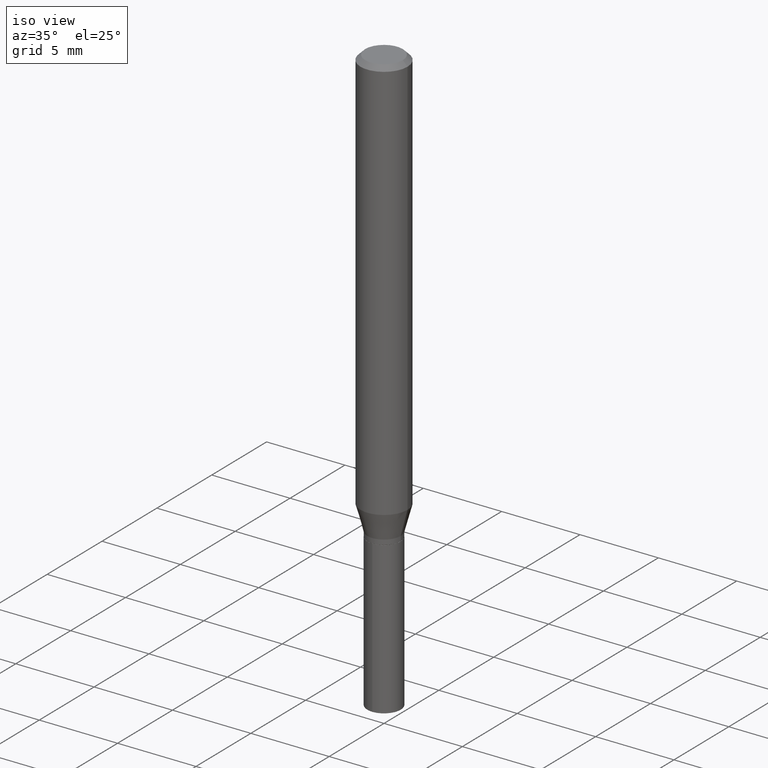
[diagram: clean part render]
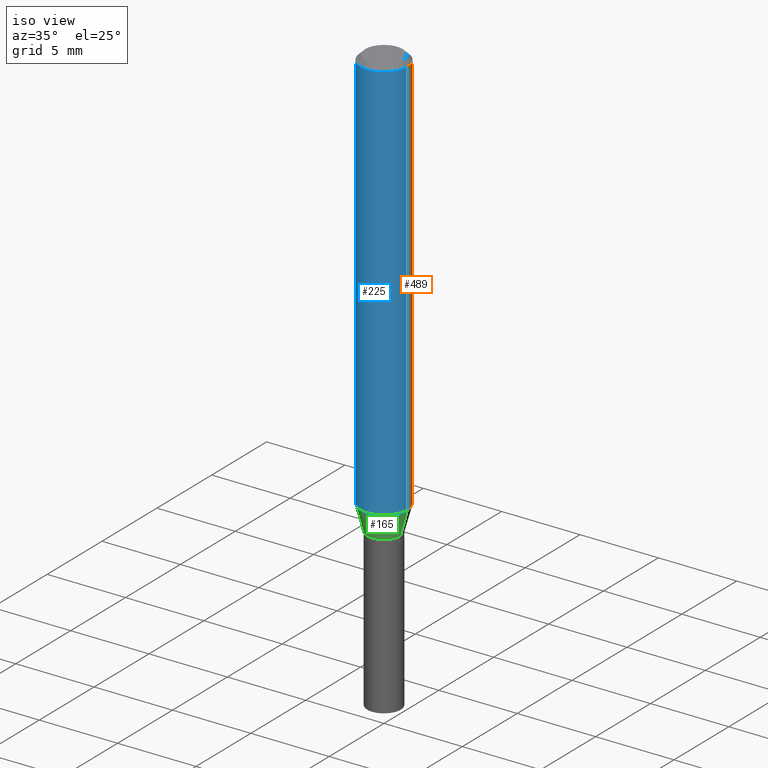
[diagram: same view with three faces highlighted in distinct colors, each labeled with its STEP entity id]
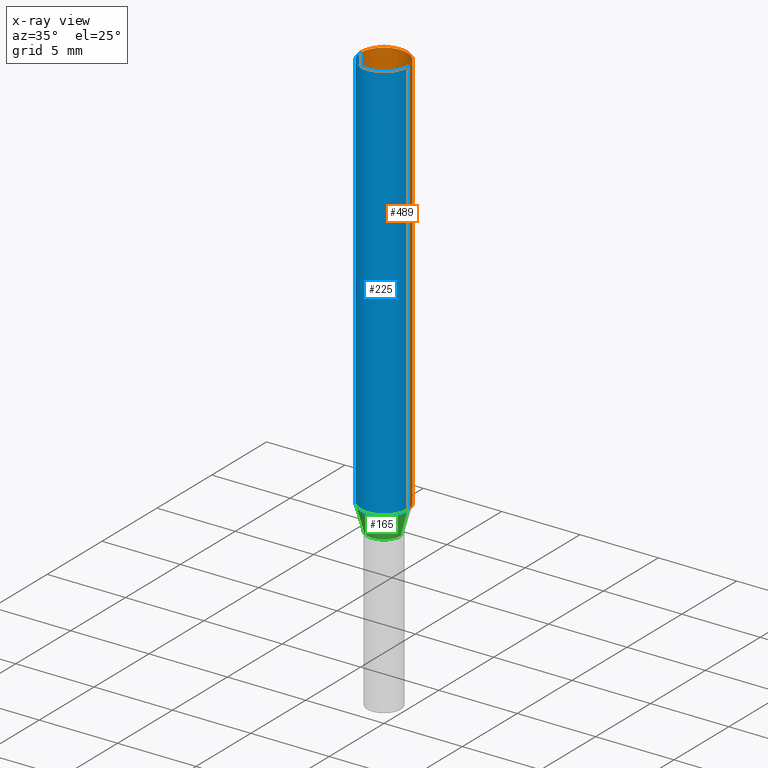
[diagram: x-ray of the same camera — body ghosted, the three highlighted faces saturated]
A machine part, iso view with three faces highlighted in distinct colors.
The next image is the same camera in x-ray (body ghosted, the three faces saturated) — at least one of them is partly hidden behind the body in this view.
Their STEP definitions:

[orange] entity #489 — the highlighted cylindrical surface (edge-blend (fillet) strip) has radius 1.4999 mm, axis along (-0, 0, 1).
#5 = AXIS2_PLACEMENT_3D ( 'NONE', #260, #487, #415 ) ;
#29 = CARTESIAN_POINT ( 'NONE',  ( 0.05905000000000013016, -3.966958010282648505E-15, -1.018081931190571998 ) ) ;
#33 = DIRECTION ( 'NONE',  ( -2.445468806185136597E-29, 3.491481338843145583E-15, 1.000000000000000000 ) ) ;
#36 = CARTESIAN_POINT ( 'NONE',  ( 2.489687604867266189E-29, -3.554614064165273585E-15, -1.018081931190571998 ) ) ;
#39 = VECTOR ( 'NONE', #484, 39.37007874015748143 ) ;
#41 = ORIENTED_EDGE ( 'NONE', *, *, #393, .T. ) ;
#73 = CARTESIAN_POINT ( 'NONE',  ( -0.05905000000000006771, 4.195754854663396409E-16, -2.904631170795525045E-30 ) ) ;
#138 = LINE ( 'NONE', #73, #39 ) ;
#152 = VERTEX_POINT ( 'NONE', #247 ) ;
#157 = ORIENTED_EDGE ( 'NONE', *, *, #408, .F. ) ;
#169 = VERTEX_POINT ( 'NONE', #29 ) ;
#191 = FACE_OUTER_BOUND ( 'NONE', #399, .T. ) ;
#196 = CARTESIAN_POINT ( 'NONE',  ( 0.000000000000000000, 0.000000000000000000, 0.000000000000000000 ) ) ;
#206 = VERTEX_POINT ( 'NONE', #481 ) ;
#228 = CYLINDRICAL_SURFACE ( 'NONE', #236, 0.05905000000000006771 ) ;
#236 = AXIS2_PLACEMENT_3D ( 'NONE', #196, #424, #341 ) ;
#247 = CARTESIAN_POINT ( 'NONE',  ( 0.05905000000000000526, -4.535783407291119586E-16, -0.01181000000000007565 ) ) ;
#260 = CARTESIAN_POINT ( 'NONE',  ( 2.888098660104664642E-31, -4.123439461173780879E-17, -0.01181000000000007565 ) ) ;
#267 = VECTOR ( 'NONE', #299, 39.37007874015748143 ) ;
#295 = CARTESIAN_POINT ( 'NONE',  ( 0.05905000000000006771, -4.123439461173745257E-16, 2.879382386107503723E-30 ) ) ;
#299 = DIRECTION ( 'NONE',  ( -2.445468806185136877E-29, 3.491481338843145188E-15, 1.000000000000000000 ) ) ;
#332 = CIRCLE ( 'NONE', #372, 0.05905000000000013016 ) ;
#333 = DIRECTION ( 'NONE',  ( 1.000000000000000000, -6.982962677686265133E-15, 0.000000000000000000 ) ) ;
#341 = DIRECTION ( 'NONE',  ( 1.000000000000000000, -6.982962677686266711E-15, 4.876176775795936353E-29 ) ) ;
#351 = EDGE_CURVE ( 'NONE', #206, #420, #138, .T. ) ;
#359 = ORIENTED_EDGE ( 'NONE', *, *, #416, .F. ) ;
#372 = AXIS2_PLACEMENT_3D ( 'NONE', #36, #33, #333 ) ;
#393 = EDGE_CURVE ( 'NONE', #169, #206, #332, .T. ) ;
#394 = CIRCLE ( 'NONE', #5, 0.05905000000000000526 ) ;
#399 = EDGE_LOOP ( 'NONE', ( #41, #440, #359, #157 ) ) ;
#408 = EDGE_CURVE ( 'NONE', #169, #152, #414, .T. ) ;
#414 = LINE ( 'NONE', #295, #267 ) ;
#415 = DIRECTION ( 'NONE',  ( 1.000000000000000000, -6.982962677686268288E-15, 0.000000000000000000 ) ) ;
#416 = EDGE_CURVE ( 'NONE', #152, #420, #394, .T. ) ;
#420 = VERTEX_POINT ( 'NONE', #447 ) ;
#424 = DIRECTION ( 'NONE',  ( -2.445468806185136597E-29, 3.491481338843145583E-15, 1.000000000000000000 ) ) ;
#440 = ORIENTED_EDGE ( 'NONE', *, *, #351, .T. ) ;
#447 = CARTESIAN_POINT ( 'NONE',  ( -0.05905000000000000526, -1.378348743922165375E-15, -0.01181000000000007565 ) ) ;
#481 = CARTESIAN_POINT ( 'NONE',  ( -0.05905000000000013016, -3.135038578698933303E-15, -1.018081931190571998 ) ) ;
#484 = DIRECTION ( 'NONE',  ( -2.445468806185136877E-29, 3.491481338843145188E-15, 1.000000000000000000 ) ) ;
#487 = DIRECTION ( 'NONE',  ( -2.445468806185136597E-29, 3.491481338843145583E-15, 1.000000000000000000 ) ) ;
#489 = ADVANCED_FACE ( 'NONE', ( #191 ), #228, .T. ) ;

[blue] entity #225 — the highlighted cylindrical surface (edge-blend (fillet) strip) has radius 1.4999 mm, axis along (-0, 0, 1).
#29 = CARTESIAN_POINT ( 'NONE',  ( 0.05905000000000013016, -3.966958010282648505E-15, -1.018081931190571998 ) ) ;
#39 = VECTOR ( 'NONE', #484, 39.37007874015748143 ) ;
#69 = DIRECTION ( 'NONE',  ( -2.445468806185136597E-29, 3.491481338843145583E-15, 1.000000000000000000 ) ) ;
#73 = CARTESIAN_POINT ( 'NONE',  ( -0.05905000000000006771, 4.195754854663396409E-16, -2.904631170795525045E-30 ) ) ;
#96 = FACE_OUTER_BOUND ( 'NONE', #279, .T. ) ;
#98 = DIRECTION ( 'NONE',  ( 1.000000000000000000, -6.982962677686265133E-15, 0.000000000000000000 ) ) ;
#138 = LINE ( 'NONE', #73, #39 ) ;
#152 = VERTEX_POINT ( 'NONE', #247 ) ;
#169 = VERTEX_POINT ( 'NONE', #29 ) ;
#206 = VERTEX_POINT ( 'NONE', #481 ) ;
#212 = CIRCLE ( 'NONE', #278, 0.05905000000000013016 ) ;
#222 = CARTESIAN_POINT ( 'NONE',  ( 2.888098660104664642E-31, -4.123439461173780879E-17, -0.01181000000000007565 ) ) ;
#225 = ADVANCED_FACE ( 'NONE', ( #96 ), #251, .T. ) ;
#240 = ORIENTED_EDGE ( 'NONE', *, *, #351, .F. ) ;
#247 = CARTESIAN_POINT ( 'NONE',  ( 0.05905000000000000526, -4.535783407291119586E-16, -0.01181000000000007565 ) ) ;
#251 = CYLINDRICAL_SURFACE ( 'NONE', #298, 0.05905000000000006771 ) ;
#258 = EDGE_CURVE ( 'NONE', #206, #169, #212, .T. ) ;
#262 = AXIS2_PLACEMENT_3D ( 'NONE', #222, #375, #300 ) ;
#267 = VECTOR ( 'NONE', #299, 39.37007874015748143 ) ;
#278 = AXIS2_PLACEMENT_3D ( 'NONE', #364, #437, #98 ) ;
#279 = EDGE_LOOP ( 'NONE', ( #240, #288, #325, #460 ) ) ;
#284 = DIRECTION ( 'NONE',  ( 1.000000000000000000, -6.982962677686266711E-15, 4.876176775795936353E-29 ) ) ;
#288 = ORIENTED_EDGE ( 'NONE', *, *, #258, .T. ) ;
#295 = CARTESIAN_POINT ( 'NONE',  ( 0.05905000000000006771, -4.123439461173745257E-16, 2.879382386107503723E-30 ) ) ;
#298 = AXIS2_PLACEMENT_3D ( 'NONE', #326, #69, #284 ) ;
#299 = DIRECTION ( 'NONE',  ( -2.445468806185136877E-29, 3.491481338843145188E-15, 1.000000000000000000 ) ) ;
#300 = DIRECTION ( 'NONE',  ( 1.000000000000000000, -6.982962677686268288E-15, 0.000000000000000000 ) ) ;
#325 = ORIENTED_EDGE ( 'NONE', *, *, #408, .T. ) ;
#326 = CARTESIAN_POINT ( 'NONE',  ( 0.000000000000000000, 0.000000000000000000, 0.000000000000000000 ) ) ;
#351 = EDGE_CURVE ( 'NONE', #206, #420, #138, .T. ) ;
#364 = CARTESIAN_POINT ( 'NONE',  ( 2.489687604867266189E-29, -3.554614064165273585E-15, -1.018081931190571998 ) ) ;
#375 = DIRECTION ( 'NONE',  ( -2.445468806185136597E-29, 3.491481338843145583E-15, 1.000000000000000000 ) ) ;
#408 = EDGE_CURVE ( 'NONE', #169, #152, #414, .T. ) ;
#414 = LINE ( 'NONE', #295, #267 ) ;
#420 = VERTEX_POINT ( 'NONE', #447 ) ;
#437 = DIRECTION ( 'NONE',  ( -2.445468806185136597E-29, 3.491481338843145583E-15, 1.000000000000000000 ) ) ;
#447 = CARTESIAN_POINT ( 'NONE',  ( -0.05905000000000000526, -1.378348743922165375E-15, -0.01181000000000007565 ) ) ;
#455 = EDGE_CURVE ( 'NONE', #420, #152, #473, .T. ) ;
#460 = ORIENTED_EDGE ( 'NONE', *, *, #455, .F. ) ;
#473 = CIRCLE ( 'NONE', #262, 0.05905000000000000526 ) ;
#481 = CARTESIAN_POINT ( 'NONE',  ( -0.05905000000000013016, -3.135038578698933303E-15, -1.018081931190571998 ) ) ;
#484 = DIRECTION ( 'NONE',  ( -2.445468806185136877E-29, 3.491481338843145188E-15, 1.000000000000000000 ) ) ;

[green] entity #165 — the highlighted conical surface has half-angle 15 deg.
#1 = VERTEX_POINT ( 'NONE', #172 ) ;
#14 = EDGE_CURVE ( 'NONE', #305, #169, #474, .T. ) ;
#19 = ORIENTED_EDGE ( 'NONE', *, *, #301, .T. ) ;
#22 = FACE_OUTER_BOUND ( 'NONE', #121, .T. ) ;
#29 = CARTESIAN_POINT ( 'NONE',  ( 0.05905000000000013016, -3.966958010282648505E-15, -1.018081931190571998 ) ) ;
#59 = LINE ( 'NONE', #216, #442 ) ;
#70 = CARTESIAN_POINT ( 'NONE',  ( 0.04195000000000000118, -4.070368944823337860E-15, -1.081900000000000084 ) ) ;
#94 = CIRCLE ( 'NONE', #432, 0.04195000000000000118 ) ;
#98 = DIRECTION ( 'NONE',  ( 1.000000000000000000, -6.982962677686265133E-15, 0.000000000000000000 ) ) ;
#118 = ORIENTED_EDGE ( 'NONE', *, *, #126, .F. ) ;
#121 = EDGE_LOOP ( 'NONE', ( #118, #19, #282, #392 ) ) ;
#122 = VECTOR ( 'NONE', #363, 39.37007874015747433 ) ;
#126 = EDGE_CURVE ( 'NONE', #1, #206, #59, .T. ) ;
#165 = ADVANCED_FACE ( 'NONE', ( #22 ), #383, .T. ) ;
#169 = VERTEX_POINT ( 'NONE', #29 ) ;
#172 = CARTESIAN_POINT ( 'NONE',  ( -0.04195000000000000118, -3.500484444943037956E-15, -1.081900000000000084 ) ) ;
#204 = DIRECTION ( 'NONE',  ( -0.2588190451025213501, 5.211531920934551042E-15, 0.9659258262890682012 ) ) ;
#206 = VERTEX_POINT ( 'NONE', #481 ) ;
#209 = CARTESIAN_POINT ( 'NONE',  ( 0.04195000000000000118, -4.070368944823337860E-15, -1.081900000000000084 ) ) ;
#212 = CIRCLE ( 'NONE', #278, 0.05905000000000013016 ) ;
#216 = CARTESIAN_POINT ( 'NONE',  ( -0.04195000000000000118, -3.479360982843036974E-15, -1.081900000000000084 ) ) ;
#258 = EDGE_CURVE ( 'NONE', #206, #169, #212, .T. ) ;
#259 = CARTESIAN_POINT ( 'NONE',  ( 2.645752701411699139E-29, -3.777433660494399306E-15, -1.081900000000000084 ) ) ;
#278 = AXIS2_PLACEMENT_3D ( 'NONE', #364, #437, #98 ) ;
#282 = ORIENTED_EDGE ( 'NONE', *, *, #14, .T. ) ;
#291 = CARTESIAN_POINT ( 'NONE',  ( 2.645752701411699139E-29, -3.777433660494399306E-15, -1.081900000000000084 ) ) ;
#301 = EDGE_CURVE ( 'NONE', #1, #305, #94, .T. ) ;
#305 = VERTEX_POINT ( 'NONE', #70 ) ;
#331 = DIRECTION ( 'NONE',  ( -2.445468806185136597E-29, 3.491481338843145583E-15, 1.000000000000000000 ) ) ;
#363 = DIRECTION ( 'NONE',  ( 0.2588190451025213501, 1.565188264969621968E-15, 0.9659258262890682012 ) ) ;
#364 = CARTESIAN_POINT ( 'NONE',  ( 2.489687604867266189E-29, -3.554614064165273585E-15, -1.018081931190571998 ) ) ;
#368 = DIRECTION ( 'NONE',  ( 1.000000000000000000, -6.982962677686266711E-15, 0.000000000000000000 ) ) ;
#383 = CONICAL_SURFACE ( 'NONE', #457, 0.04195000000000000118, 0.2617993877991500740 ) ;
#392 = ORIENTED_EDGE ( 'NONE', *, *, #258, .F. ) ;
#400 = DIRECTION ( 'NONE',  ( -2.445468806185136597E-29, 3.491481338843145583E-15, 1.000000000000000000 ) ) ;
#409 = DIRECTION ( 'NONE',  ( 1.000000000000000000, -6.982962677686266711E-15, 0.000000000000000000 ) ) ;
#432 = AXIS2_PLACEMENT_3D ( 'NONE', #259, #331, #409 ) ;
#437 = DIRECTION ( 'NONE',  ( -2.445468806185136597E-29, 3.491481338843145583E-15, 1.000000000000000000 ) ) ;
#442 = VECTOR ( 'NONE', #204, 39.37007874015747433 ) ;
#457 = AXIS2_PLACEMENT_3D ( 'NONE', #291, #400, #368 ) ;
#474 = LINE ( 'NONE', #209, #122 ) ;
#481 = CARTESIAN_POINT ( 'NONE',  ( -0.05905000000000013016, -3.135038578698933303E-15, -1.018081931190571998 ) ) ;